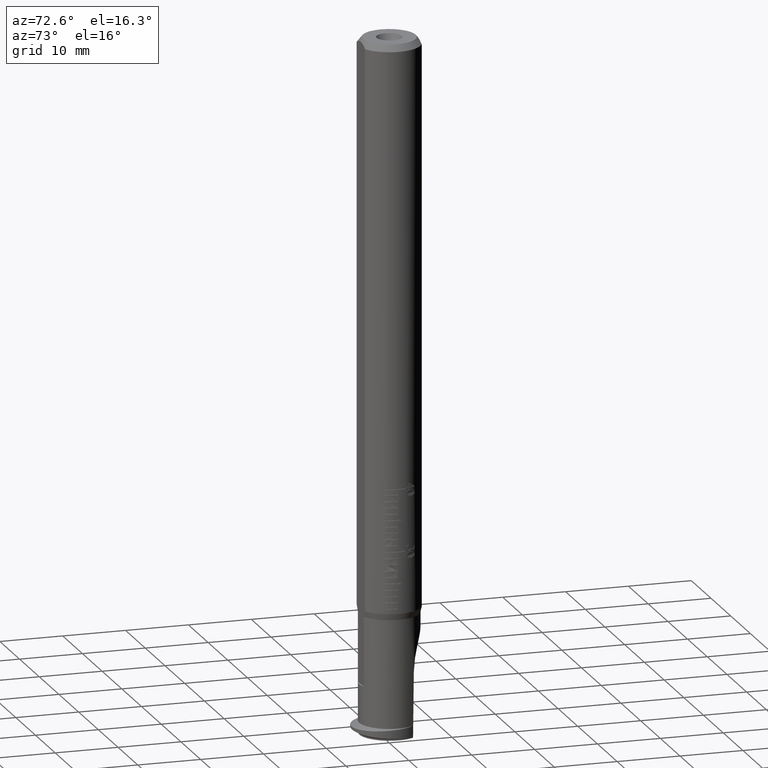
[diagram: clean part render]
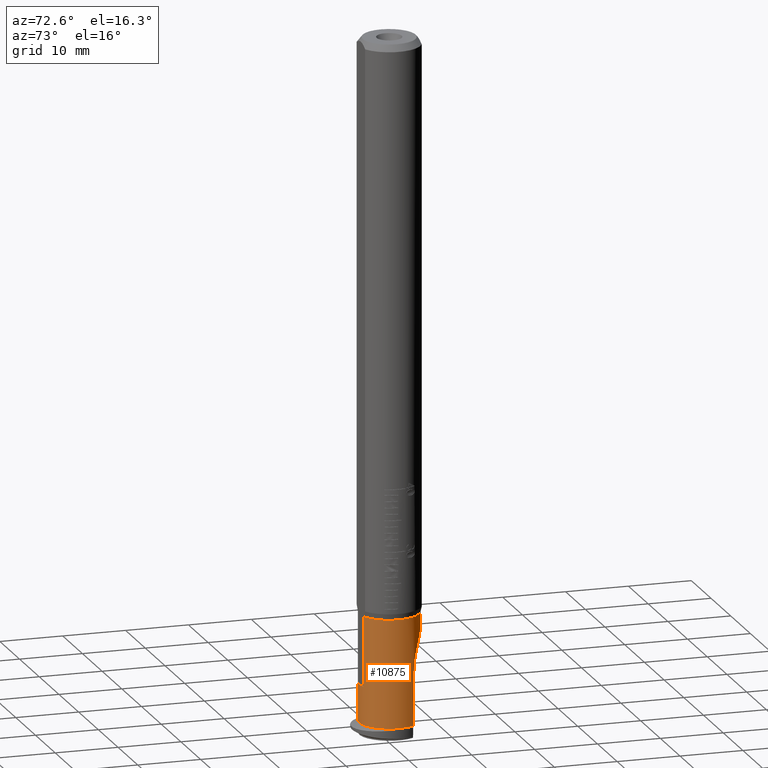
[diagram: same view with one face highlighted and labeled with its STEP entity id]
A machine part, auxiliary view. The second image highlights one B-rep face of the part: STEP entity #10875.
In plain terms, the highlighted cylindrical surface (edge-blend (fillet) strip) has radius 4.75 mm, axis along (0, -0, 1).
Its self-contained STEP definition (entity closure, byte-faithful):
#94 = DIRECTION ( 'NONE',  ( 1.000000000000000000, 0.000000000000000000, 0.000000000000000000 ) ) ;
#145 = VECTOR ( 'NONE', #12687, 1000.000000000000000 ) ;
#160 = LINE ( 'NONE', #12666, #11248 ) ;
#176 = VERTEX_POINT ( 'NONE', #951 ) ;
#261 = DIRECTION ( 'NONE',  ( -1.000000000000000000, -0.000000000000000000, -0.000000000000000000 ) ) ;
#346 = CARTESIAN_POINT ( 'NONE',  ( 30.85597794395872384, 20.97579512832781035, 31.78683574045086502 ) ) ;
#572 =( BOUNDED_CURVE ( )  B_SPLINE_CURVE ( 3, ( #1650, #1782, #7123, #5968 ),
 .UNSPECIFIED., .F., .F. ) 
 B_SPLINE_CURVE_WITH_KNOTS ( ( 4, 4 ),
 ( 0.03790363064198812304, 0.3879241965683589699 ),
 .UNSPECIFIED. ) 
 CURVE ( )  GEOMETRIC_REPRESENTATION_ITEM ( )  RATIONAL_B_SPLINE_CURVE ( ( 1.000000000000000000, 0.9898164990035347444, 0.9898164990035347444, 1.000000000000000000 ) ) 
 REPRESENTATION_ITEM ( '' )  );
#794 = CARTESIAN_POINT ( 'NONE',  ( 26.75889453168043275, 21.29336407492823469, 27.04668755376311395 ) ) ;
#823 = CARTESIAN_POINT ( 'NONE',  ( 35.18294916190558297, 20.77382478997546755, 27.03683574045080462 ) ) ;
#885 = CARTESIAN_POINT ( 'NONE',  ( 36.95597794395829538, 18.43499858260020474, 27.77350135203781534 ) ) ;
#951 = CARTESIAN_POINT ( 'NONE',  ( 36.95597794395829538, 18.43499858260020474, 27.77350135203781534 ) ) ;
#1015 = CARTESIAN_POINT ( 'NONE',  ( 36.23412989340191359, 17.81365550559329947, 28.24208759074385711 ) ) ;
#1142 = EDGE_CURVE ( 'NONE', #13289, #7315, #160, .T. ) ;
#1328 = CARTESIAN_POINT ( 'NONE',  ( 35.27058245609747189, 20.97579512832963289, 27.03683574045085436 ) ) ;
#1429 = B_SPLINE_CURVE_WITH_KNOTS ( 'NONE', 3,
 ( #10441, #12234, #3964, #8071, #11402, #11207, #9287, #13453, #2860, #4092, #2030, #6219, #7043, #6026 ),
 .UNSPECIFIED., .F., .F.,
 ( 4, 2, 2, 2, 2, 2, 4 ),
 ( 0.000000000000000000, 0.001814110515759739892, 0.002721165773639610489, 0.003628221031519481520, 0.004535276289399352116, 0.005442331547279222713, 0.007256442063038964774 ),
 .UNSPECIFIED. ) ;
#1650 = CARTESIAN_POINT ( 'NONE',  ( 21.27286889090748545, 25.47579512832781035, 30.26614510787628021 ) ) ;
#1782 = CARTESIAN_POINT ( 'NONE',  ( 21.29397794655265130, 25.29745903436986509, 29.73841618943606235 ) ) ;
#1888 = CARTESIAN_POINT ( 'NONE',  ( 28.51894367020813092, 21.10204600583076129, 27.03851385625537063 ) ) ;
#1919 = CARTESIAN_POINT ( 'NONE',  ( 35.04626223882169000, 20.13849454592763166, 27.10628475390401704 ) ) ;
#1978 = CARTESIAN_POINT ( 'NONE',  ( 35.00851895389484980, 19.50778342541061505, 27.26420711774241212 ) ) ;
#2030 = CARTESIAN_POINT ( 'NONE',  ( 23.65673932183976902, 24.77003788785394889, 34.65088492861810465 ) ) ;
#2042 = CARTESIAN_POINT ( 'NONE',  ( 36.68461250925135886, 18.04648287320023670, 28.04686061175229028 ) ) ;
#2097 = AXIS2_PLACEMENT_3D ( 'NONE', #5118, #13320, #10375 ) ;
#2109 = CARTESIAN_POINT ( 'NONE',  ( 33.01181833807142141, 21.01976478981135088, 27.03686100652300794 ) ) ;
#2291 = LINE ( 'NONE', #3184, #145 ) ;
#2369 = VERTEX_POINT ( 'NONE', #4587 ) ;
#2777 = CARTESIAN_POINT ( 'NONE',  ( 30.85597794395872384, 16.47579512832780679, 33.30752637302540364 ) ) ;
#2785 = VERTEX_POINT ( 'NONE', #12629 ) ;
#2842 = CARTESIAN_POINT ( 'NONE',  ( 26.07557890879294860, 21.46426662738315372, 27.06124049093840256 ) ) ;
#2860 = CARTESIAN_POINT ( 'NONE',  ( 24.43070198793236969, 24.45585699338186458, 35.02353063573293213 ) ) ;
#2870 = CARTESIAN_POINT ( 'NONE',  ( 35.79705711178557692, 17.84023422691289440, 28.21836103661811279 ) ) ;
#2909 = CARTESIAN_POINT ( 'NONE',  ( 27.10504656279777436, 21.22769811437931509, 27.04329453156602625 ) ) ;
#2941 = CARTESIAN_POINT ( 'NONE',  ( 36.86696293819510828, 18.26738286132797739, 27.88354188803153377 ) ) ;
#3050 = EDGE_CURVE ( 'NONE', #7413, #3790, #5219, .T. ) ;
#3067 = ORIENTED_EDGE ( 'NONE', *, *, #7627, .T. ) ;
#3079 = ORIENTED_EDGE ( 'NONE', *, *, #9402, .T. ) ;
#3161 = ORIENTED_EDGE ( 'NONE', *, *, #3050, .T. ) ;
#3184 = CARTESIAN_POINT ( 'NONE',  ( 30.85597794395872384, 16.47579512832780679, 33.30752637302536812 ) ) ;
#3330 = CARTESIAN_POINT ( 'NONE',  ( 28.51894367020813092, 21.10204600583076129, 27.03851385625537063 ) ) ;
#3508 = CARTESIAN_POINT ( 'NONE',  ( 19.75597794394405682, 25.47579512832781035, 33.30752637300096097 ) ) ;
#3790 = VERTEX_POINT ( 'NONE', #4556 ) ;
#3862 = ORIENTED_EDGE ( 'NONE', *, *, #5737, .T. ) ;
#3942 = CARTESIAN_POINT ( 'NONE',  ( 24.74930045069158169, 21.96898347147812558, 27.13874175754741458 ) ) ;
#3950 = ORIENTED_EDGE ( 'NONE', *, *, #4025, .T. ) ;
#3964 = CARTESIAN_POINT ( 'NONE',  ( 27.30344354774005211, 23.73499238995019311, 35.65537830436899469 ) ) ;
#3972 = CARTESIAN_POINT ( 'NONE',  ( 35.23567437852958051, 18.35636135050008733, 27.82316820712014760 ) ) ;
#4008 = CARTESIAN_POINT ( 'NONE',  ( 22.63097112949893841, 23.43656993666291299, 27.72188342910645886 ) ) ;
#4025 = EDGE_CURVE ( 'NONE', #4869, #13138, #9339, .T. ) ;
#4032 = ORIENTED_EDGE ( 'NONE', *, *, #5365, .T. ) ;
#4044 = CARTESIAN_POINT ( 'NONE',  ( -66.24402205604140192, 20.97579512832781035, 31.78683574045086502 ) ) ;
#4070 = DIRECTION ( 'NONE',  ( 0.000000000000000000, 1.460819769243623384E-15, 1.000000000000000000 ) ) ;
#4092 = CARTESIAN_POINT ( 'NONE',  ( 23.90965891337507188, 24.66148936129325264, 34.78728278228206250 ) ) ;
#4142 = DIRECTION ( 'NONE',  ( -1.000000000000000000, -0.000000000000000000, 0.000000000000000000 ) ) ;
#4166 = B_SPLINE_CURVE_WITH_KNOTS ( 'NONE', 3,
 ( #10159, #5864, #13163, #5932, #11259, #13235, #4008, #5096, #6071, #9269, #5036, #3942, #10028, #9204, #2842, #794, #2909, #11327, #7984, #10091 ),
 .UNSPECIFIED., .F., .F.,
 ( 4, 2, 2, 2, 2, 2, 2, 2, 2, 4 ),
 ( 6.009258394948636926E-18, 0.001060431970542691053, 0.001590647955814033544, 0.002120863941085376035, 0.003181295911628064920, 0.004241727882170753805, 0.005302159852713442256, 0.006362591823256130708, 0.007423023793798820026, 0.008483455764341507610 ),
 .UNSPECIFIED. ) ;
#4281 = CARTESIAN_POINT ( 'NONE',  ( 35.27139971737641844, 20.97767505677247257, 27.03683601946120163 ) ) ;
#4330 = CARTESIAN_POINT ( 'NONE',  ( 83.85597794395874871, 25.47579512832781035, 30.26614510787627310 ) ) ;
#4556 = CARTESIAN_POINT ( 'NONE',  ( 21.27286889090748545, 25.47579512832781035, 30.26614510787628021 ) ) ;
#4587 = CARTESIAN_POINT ( 'NONE',  ( 35.27058245609747189, 20.97579512832963289, 27.03683574045085436 ) ) ;
#4869 = VERTEX_POINT ( 'NONE', #13321 ) ;
#4999 = CARTESIAN_POINT ( 'NONE',  ( 35.19606863642973593, 18.44287924801458090, 27.76716550583640597 ) ) ;
#5036 = CARTESIAN_POINT ( 'NONE',  ( 24.12894266753502492, 22.29759550520240907, 27.22130789335945167 ) ) ;
#5096 = CARTESIAN_POINT ( 'NONE',  ( 22.99529724786738072, 23.09907096479918565, 27.52993551544913942 ) ) ;
#5118 = CARTESIAN_POINT ( 'NONE',  ( 36.95597794395870039, 20.97579512832781035, 31.78683574045086502 ) ) ;
#5131 = CARTESIAN_POINT ( 'NONE',  ( 35.27180834798182474, 20.97861502083035745, 27.03683657748184999 ) ) ;
#5151 = EDGE_CURVE ( 'NONE', #2785, #8892, #2291, .T. ) ;
#5219 = LINE ( 'NONE', #4330, #7063 ) ;
#5265 = CYLINDRICAL_SURFACE ( 'NONE', #13233, 4.750000000000011546 ) ;
#5313 = B_SPLINE_CURVE_WITH_KNOTS ( 'NONE', 3,
 ( #7498, #4281, #10757, #1328 ),
 .UNSPECIFIED., .F., .F.,
 ( 4, 4 ),
 ( 0.000000000000000000, 1.000000000000000000 ),
 .UNSPECIFIED. ) ;
#5365 = EDGE_CURVE ( 'NONE', #8892, #4869, #10408, .T. ) ;
#5396 = CARTESIAN_POINT ( 'NONE',  ( 30.76073674750062992, 21.06091076730312395, 27.03742013091680363 ) ) ;
#5552 = CARTESIAN_POINT ( 'NONE',  ( 36.95597794414727844, 23.53945764033520405, 35.78560236586705656 ) ) ;
#5737 = EDGE_CURVE ( 'NONE', #2369, #176, #13114, .T. ) ;
#5864 = CARTESIAN_POINT ( 'NONE',  ( 21.74967262398361711, 24.47097827973565387, 28.55273595461589409 ) ) ;
#5932 = CARTESIAN_POINT ( 'NONE',  ( 22.19234793438398157, 23.90126428314117391, 28.04162532477063152 ) ) ;
#5968 = CARTESIAN_POINT ( 'NONE',  ( 21.62239992271543088, 24.68146973925084708, 28.81522411071851408 ) ) ;
#6017 =( BOUNDED_CURVE ( )  B_SPLINE_CURVE ( 3, ( #5552, #6586, #8760, #10733 ),
 .UNSPECIFIED., .F., .F. ) 
 B_SPLINE_CURVE_WITH_KNOTS ( ( 4, 4 ),
 ( 4.994512252198084035, 5.026950569537394387 ),
 .UNSPECIFIED. ) 
 CURVE ( )  GEOMETRIC_REPRESENTATION_ITEM ( )  RATIONAL_B_SPLINE_CURVE ( ( 1.000000000000000000, 0.9999123148862534283, 0.9999123148862534283, 1.000000000000000000 ) ) 
 REPRESENTATION_ITEM ( '' )  );
#6026 = CARTESIAN_POINT ( 'NONE',  ( 22.17712812659350519, 25.47579512832781390, 33.30752637302546049 ) ) ;
#6071 = CARTESIAN_POINT ( 'NONE',  ( 23.26371461702866128, 22.88107859912870623, 27.43040043496589675 ) ) ;
#6073 = CARTESIAN_POINT ( 'NONE',  ( 19.75597794395869755, 20.97579512832781035, 31.78683574045086502 ) ) ;
#6099 = CARTESIAN_POINT ( 'NONE',  ( 36.91484391257357345, 18.34871482768202355, 27.82812662001489201 ) ) ;
#6163 = CARTESIAN_POINT ( 'NONE',  ( 35.01444939055248540, 19.30186248700260521, 27.33623641117538128 ) ) ;
#6187 = ORIENTED_EDGE ( 'NONE', *, *, #7792, .T. ) ;
#6201 = EDGE_CURVE ( 'NONE', #6916, #7177, #4166, .T. ) ;
#6219 = CARTESIAN_POINT ( 'NONE',  ( 22.93670701857153915, 25.09691505495648300, 34.17955261299875502 ) ) ;
#6586 = CARTESIAN_POINT ( 'NONE',  ( 34.12972866078196432, 23.58269728972442181, 35.75788085106945857 ) ) ;
#6916 = VERTEX_POINT ( 'NONE', #10763 ) ;
#6917 = CARTESIAN_POINT ( 'NONE',  ( 22.17712812659350519, 25.47579512832781390, 33.30752637302546049 ) ) ;
#7043 = CARTESIAN_POINT ( 'NONE',  ( 22.52155901400623250, 25.31134508707302544, 33.79416393742846481 ) ) ;
#7051 = CARTESIAN_POINT ( 'NONE',  ( 36.75198260595821154, 18.11623590585194066, 27.99287725892752476 ) ) ;
#7063 = VECTOR ( 'NONE', #7476, 1000.000000000000000 ) ;
#7117 = CARTESIAN_POINT ( 'NONE',  ( 36.52797814772015528, 17.92825047668544158, 28.14255860395719466 ) ) ;
#7123 = CARTESIAN_POINT ( 'NONE',  ( 21.41168698055367514, 25.02995982622484661, 29.24980003394379935 ) ) ;
#7173 = EDGE_CURVE ( 'NONE', #7315, #2785, #11921, .T. ) ;
#7177 = VERTEX_POINT ( 'NONE', #1888 ) ;
#7195 = DIRECTION ( 'NONE',  ( -1.000000000000000000, -0.000000000000000000, -0.000000000000000000 ) ) ;
#7315 = VERTEX_POINT ( 'NONE', #3508 ) ;
#7387 = CARTESIAN_POINT ( 'NONE',  ( 35.27180834798182474, 20.97861502083035745, 27.03683657748184999 ) ) ;
#7413 = VERTEX_POINT ( 'NONE', #9049 ) ;
#7476 = DIRECTION ( 'NONE',  ( 1.000000000000000000, 0.000000000000000000, 0.000000000000000000 ) ) ;
#7485 =( BOUNDED_CURVE ( )  B_SPLINE_CURVE ( 3, ( #3330, #5396, #2109, #7387 ),
 .UNSPECIFIED., .F., .F. ) 
 B_SPLINE_CURVE_WITH_KNOTS ( ( 4, 4 ),
 ( 1.256234737642192067, 1.282223338601159890 ),
 .UNSPECIFIED. ) 
 CURVE ( )  GEOMETRIC_REPRESENTATION_ITEM ( )  RATIONAL_B_SPLINE_CURVE ( ( 1.000000000000000000, 0.9999437168436491330, 0.9999437168436491330, 1.000000000000000000 ) ) 
 REPRESENTATION_ITEM ( '' )  );
#7498 = CARTESIAN_POINT ( 'NONE',  ( 35.27180834798182474, 20.97861502083035745, 27.03683657748184999 ) ) ;
#7627 = EDGE_CURVE ( 'NONE', #8480, #11554, #6017, .T. ) ;
#7782 = AXIS2_PLACEMENT_3D ( 'NONE', #8738, #261, #9631 ) ;
#7792 = EDGE_CURVE ( 'NONE', #3790, #6916, #572, .T. ) ;
#7984 = CARTESIAN_POINT ( 'NONE',  ( 28.16221190072230129, 21.10859176894191691, 27.03868789844477050 ) ) ;
#8010 = ORIENTED_EDGE ( 'NONE', *, *, #5151, .T. ) ;
#8071 = CARTESIAN_POINT ( 'NONE',  ( 26.41649722901739850, 23.88782024899625611, 35.54005868492722442 ) ) ;
#8223 = CIRCLE ( 'NONE', #7782, 4.749999999969903186 ) ;
#8437 = CIRCLE ( 'NONE', #2097, 4.750000000000011546 ) ;
#8480 = VERTEX_POINT ( 'NONE', #11306 ) ;
#8738 = CARTESIAN_POINT ( 'NONE',  ( 19.75597794398709084, 20.97579512832781035, 31.78683574045086502 ) ) ;
#8760 = CARTESIAN_POINT ( 'NONE',  ( 31.31713728039960642, 23.62548165196995598, 35.72946170243247366 ) ) ;
#8892 = VERTEX_POINT ( 'NONE', #2777 ) ;
#8909 = ORIENTED_EDGE ( 'NONE', *, *, #12621, .T. ) ;
#9049 = CARTESIAN_POINT ( 'NONE',  ( 19.75597794397289420, 25.47579512831354975, 30.26614510788109058 ) ) ;
#9166 = CARTESIAN_POINT ( 'NONE',  ( 35.02432933748800536, 19.92463925187894347, 27.14956290587981513 ) ) ;
#9204 = CARTESIAN_POINT ( 'NONE',  ( 25.73841272238279387, 21.56949640076710040, 27.07235139341714358 ) ) ;
#9269 = CARTESIAN_POINT ( 'NONE',  ( 23.83132214758520462, 22.48012467109452928, 27.27622311002667388 ) ) ;
#9287 = CARTESIAN_POINT ( 'NONE',  ( 25.25593577830117198, 24.17756745459901424, 35.29779503092674275 ) ) ;
#9294 = CARTESIAN_POINT ( 'NONE',  ( 35.90361302464882698, 17.81223409091611387, 28.24360812849181812 ) ) ;
#9307 = AXIS2_PLACEMENT_3D ( 'NONE', #6073, #10093, #11328 ) ;
#9339 = LINE ( 'NONE', #9470, #11214 ) ;
#9402 = EDGE_CURVE ( 'NONE', #7177, #9604, #7485, .T. ) ;
#9470 = CARTESIAN_POINT ( 'NONE',  ( 30.85597794395872384, 16.47579512832780679, 30.26614510787626955 ) ) ;
#9530 = AXIS2_PLACEMENT_3D ( 'NONE', #346, #94, #4070 ) ;
#9604 = VERTEX_POINT ( 'NONE', #5131 ) ;
#9631 = DIRECTION ( 'NONE',  ( 0.000000000000000000, 0.000000000000000000, 1.000000000000000000 ) ) ;
#10028 = CARTESIAN_POINT ( 'NONE',  ( 25.07386312299716735, 21.82222764246366609, 27.11111164055620293 ) ) ;
#10091 = CARTESIAN_POINT ( 'NONE',  ( 28.51894367020813092, 21.10204600583076129, 27.03851385625537063 ) ) ;
#10093 = DIRECTION ( 'NONE',  ( 1.000000000000000000, 0.000000000000000000, 0.000000000000000000 ) ) ;
#10133 = CARTESIAN_POINT ( 'NONE',  ( 19.75597794397289420, 16.47579512834205318, 30.26614510788121137 ) ) ;
#10159 = CARTESIAN_POINT ( 'NONE',  ( 21.62239992271543088, 24.68146973925084708, 28.81522411071851408 ) ) ;
#10255 = CARTESIAN_POINT ( 'NONE',  ( 35.27058245609747189, 20.97579512832963289, 27.03683574045085436 ) ) ;
#10314 = CARTESIAN_POINT ( 'NONE',  ( 35.61019015789266007, 17.92683380089471612, 28.14409107437917257 ) ) ;
#10327 = ORIENTED_EDGE ( 'NONE', *, *, #7173, .T. ) ;
#10375 = DIRECTION ( 'NONE',  ( 0.000000000000000000, 0.000000000000000000, 1.000000000000000000 ) ) ;
#10380 = ORIENTED_EDGE ( 'NONE', *, *, #11234, .T. ) ;
#10382 = CARTESIAN_POINT ( 'NONE',  ( 36.12258986798405402, 17.79888388593463588, 28.25557317508784294 ) ) ;
#10408 = CIRCLE ( 'NONE', #9530, 4.750000000000011546 ) ;
#10415 = EDGE_CURVE ( 'NONE', #7413, #13138, #8223, .T. ) ;
#10441 = CARTESIAN_POINT ( 'NONE',  ( 28.51894367020813092, 23.66779947241574078, 35.70035239576381514 ) ) ;
#10733 = CARTESIAN_POINT ( 'NONE',  ( 28.51894367020813092, 23.66779947241574078, 35.70035239576381514 ) ) ;
#10757 = CARTESIAN_POINT ( 'NONE',  ( 35.27099108673643713, 20.97673509255127300, 27.03683574045085436 ) ) ;
#10763 = CARTESIAN_POINT ( 'NONE',  ( 21.62239992271543088, 24.68146973925084708, 28.81522411071851408 ) ) ;
#10875 = ADVANCED_FACE ( 'NONE', ( #13337 ), #5265, .T. ) ;
#11111 = EDGE_LOOP ( 'NONE', ( #3950, #11301, #3161, #6187, #11463, #3079, #8909, #3862, #12458, #3067, #10380, #12404, #10327, #8010, #4032 ) ) ;
#11207 = CARTESIAN_POINT ( 'NONE',  ( 25.54378556479010243, 24.09443148100379872, 35.37089687564665041 ) ) ;
#11214 = VECTOR ( 'NONE', #4142, 1000.000000000000000 ) ;
#11219 = EDGE_CURVE ( 'NONE', #176, #8480, #8437, .T. ) ;
#11234 = EDGE_CURVE ( 'NONE', #11554, #13289, #1429, .T. ) ;
#11248 = VECTOR ( 'NONE', #11639, 1000.000000000000000 ) ;
#11259 = CARTESIAN_POINT ( 'NONE',  ( 22.29569030618282710, 23.78382437643497838, 27.95311817242159336 ) ) ;
#11301 = ORIENTED_EDGE ( 'NONE', *, *, #10415, .F. ) ;
#11306 = CARTESIAN_POINT ( 'NONE',  ( 36.95597794414727844, 23.53945764033520405, 35.78560236586705656 ) ) ;
#11327 = CARTESIAN_POINT ( 'NONE',  ( 27.80608800926335533, 21.13530104695998091, 27.03928940821864302 ) ) ;
#11328 = DIRECTION ( 'NONE',  ( 0.000000000000000000, 0.000000000000000000, 1.000000000000000000 ) ) ;
#11351 = CARTESIAN_POINT ( 'NONE',  ( 35.12626343833994724, 20.56432421058996951, 27.04981964518495019 ) ) ;
#11357 = DIRECTION ( 'NONE',  ( 0.000000000000000000, 0.000000000000000000, 1.000000000000000000 ) ) ;
#11402 = CARTESIAN_POINT ( 'NONE',  ( 26.12362085781346721, 23.94977019848552047, 35.49181336563749056 ) ) ;
#11410 = CARTESIAN_POINT ( 'NONE',  ( 36.43677513648081145, 17.87865382474653586, 28.18515805023902843 ) ) ;
#11463 = ORIENTED_EDGE ( 'NONE', *, *, #6201, .T. ) ;
#11554 = VERTEX_POINT ( 'NONE', #11941 ) ;
#11639 = DIRECTION ( 'NONE',  ( -1.000000000000000000, -0.000000000000000000, -0.000000000000000000 ) ) ;
#11921 = CIRCLE ( 'NONE', #9307, 4.750000000000011546 ) ;
#11941 = CARTESIAN_POINT ( 'NONE',  ( 28.51894367020813092, 23.66779947241574078, 35.70035239576381514 ) ) ;
#12234 = CARTESIAN_POINT ( 'NONE',  ( 27.90571264834067833, 23.67707352699889967, 35.69397301950861845 ) ) ;
#12243 = CARTESIAN_POINT ( 'NONE',  ( 35.52839806980168902, 17.98542429535373444, 28.09530953240012607 ) ) ;
#12304 = CARTESIAN_POINT ( 'NONE',  ( 35.39015845884406986, 18.11902337209440361, 27.99097765614178712 ) ) ;
#12373 = CARTESIAN_POINT ( 'NONE',  ( 35.33222098975635106, 18.19519233291961768, 27.93451933011110810 ) ) ;
#12404 = ORIENTED_EDGE ( 'NONE', *, *, #1142, .T. ) ;
#12458 = ORIENTED_EDGE ( 'NONE', *, *, #11219, .T. ) ;
#12621 = EDGE_CURVE ( 'NONE', #9604, #2369, #5313, .T. ) ;
#12629 = CARTESIAN_POINT ( 'NONE',  ( 19.75597794394407103, 16.47579512832780679, 33.30752637300088992 ) ) ;
#12666 = CARTESIAN_POINT ( 'NONE',  ( 83.85597794395874871, 25.47579512832781035, 33.30752637302546049 ) ) ;
#12687 = DIRECTION ( 'NONE',  ( 1.000000000000000000, 0.000000000000000000, -0.000000000000000000 ) ) ;
#13114 = B_SPLINE_CURVE_WITH_KNOTS ( 'NONE', 3,
 ( #10255, #823, #11351, #1919, #9166, #1978, #6163, #13270, #13329, #4999, #3972, #12373, #12304, #12243, #10314, #2870, #9294, #10382, #1015, #11410, #7117, #2042, #7051, #2941, #6099, #885 ),
 .UNSPECIFIED., .F., .F.,
 ( 4, 2, 2, 2, 2, 2, 2, 2, 2, 2, 2, 2, 4 ),
 ( 1.519047337846637550E-16, 0.0006521785037198301726, 0.001304357007439508557, 0.001956535511159186724, 0.002608714014878864892, 0.002934803266738693784, 0.003260892518598523544, 0.003586981770458352436, 0.003913071022318181762, 0.004239160274178010654, 0.004565249526037840413, 0.004891338777897669306, 0.005217428029757499065 ),
 .UNSPECIFIED. ) ;
#13138 = VERTEX_POINT ( 'NONE', #10133 ) ;
#13163 = CARTESIAN_POINT ( 'NONE',  ( 21.90802614080115873, 24.24675880680526419, 28.32949862237611427 ) ) ;
#13233 = AXIS2_PLACEMENT_3D ( 'NONE', #4044, #7195, #11357 ) ;
#13235 = CARTESIAN_POINT ( 'NONE',  ( 22.51526277336387238, 23.55125455214059116, 27.79316231790671310 ) ) ;
#13270 = CARTESIAN_POINT ( 'NONE',  ( 35.05978894080515573, 18.90181392836286633, 27.50799397431445570 ) ) ;
#13289 = VERTEX_POINT ( 'NONE', #6917 ) ;
#13320 = DIRECTION ( 'NONE',  ( -1.000000000000000000, -0.000000000000000000, -0.000000000000000000 ) ) ;
#13321 = CARTESIAN_POINT ( 'NONE',  ( 30.85597794395872384, 16.47579512832780679, 30.26614510787628021 ) ) ;
#13329 = CARTESIAN_POINT ( 'NONE',  ( 35.09818979807229056, 18.71161795076817214, 27.60596880693440980 ) ) ;
#13337 = FACE_OUTER_BOUND ( 'NONE', #11111, .T. ) ;
#13453 = CARTESIAN_POINT ( 'NONE',  ( 24.70017981162822096, 24.35811061542211320, 35.12421841470576567 ) ) ;